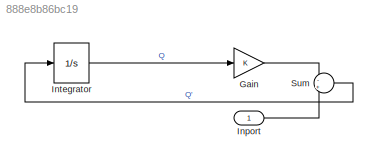
MODEL slx_888e8b86bc19
KIND model
CONFIG AbsTol = auto
CONFIG EnableMultiTasking = off
CONFIG FixedStep = auto
CONFIG MaxStep = auto
CONFIG MinStep = auto
CONFIG RelTol = 1e-3
CONFIG SampleTimeConstraint = Unconstrained
CONFIG Solver = VariableStepAuto
CONFIG SolverName = VariableStepAuto
CONFIG StartTime = 0.0
CONFIG StopTime = 10.0
WORKSPACE source: mxarray member
WORKSPACE x = 0
BLOCK [Gain] Gain
BLOCK [Inport] Inport
BLOCK [Integrator] Integrator
  Ports = [1, 1]
BLOCK [Sum] Sum
  Inputs = -+
  Ports = [2, 1]
LINE Gain:1 -> Sum:1
LINE Inport:1 -> Sum:2
LINE Integrator:1 -> Gain:1
LINE Sum:1 -> Integrator:1
